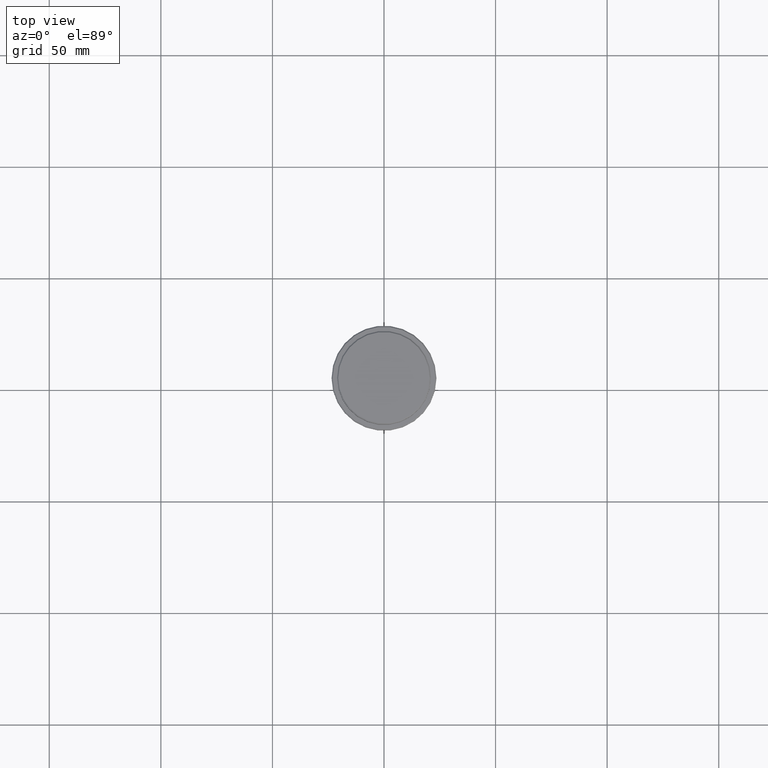
[diagram: clean part render]
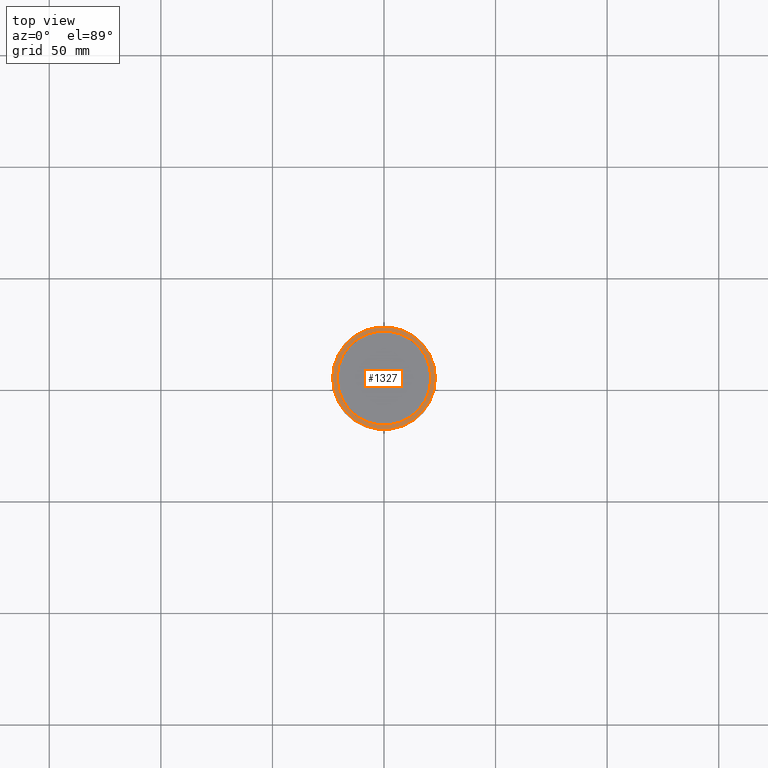
[diagram: same view with one face highlighted and labeled with its STEP entity id]
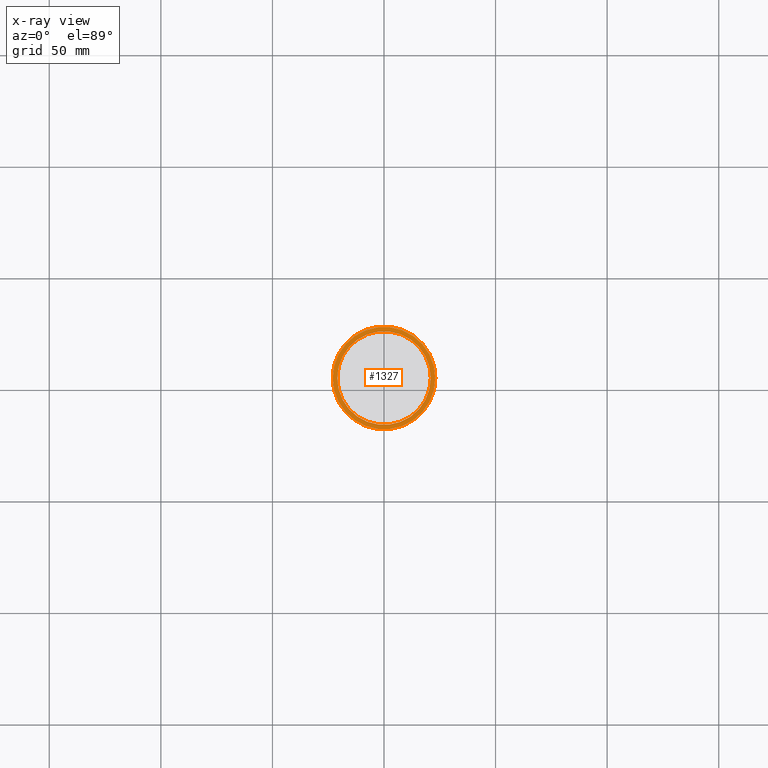
[diagram: x-ray of the same camera — body ghosted, the highlighted face saturated]
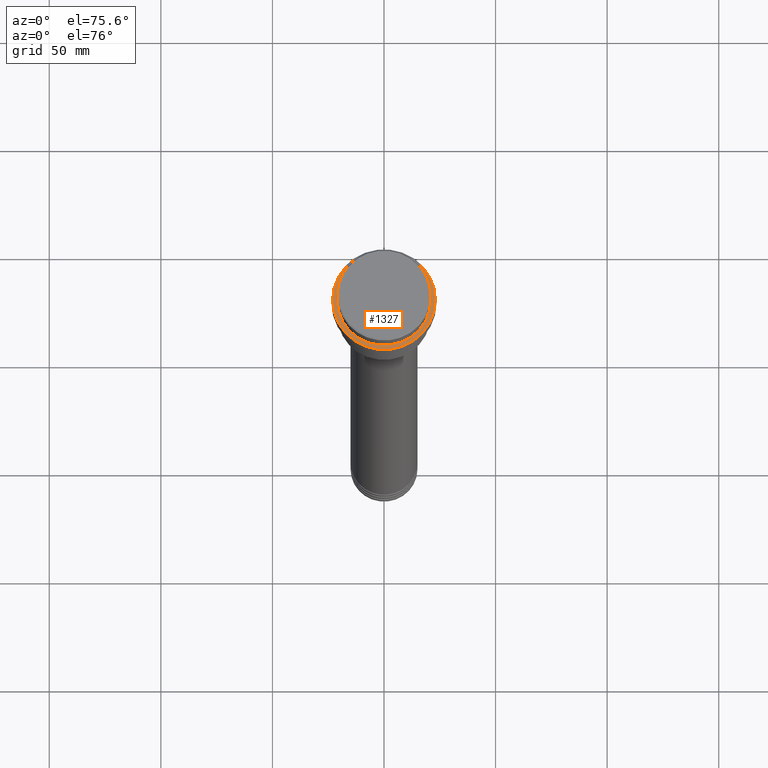
[diagram: same view with one face highlighted and labeled with its STEP entity id]
A machine part, top view. The second image highlights one B-rep face of the part: STEP entity #1327.
The next image is the same camera in x-ray: the body ghosted, the highlighted face saturated — about 0% of this face is hidden behind the body in this view.
A second angle (auxiliary view) of the same face is appended — the face is thin or edge-on in the first view.
In plain terms, the highlighted planar face has unit normal (0, -0, 1).
Its self-contained STEP definition (entity closure, byte-faithful):
#19 = DIRECTION ( 'NONE',  ( -0.000000000000000000, -0.000000000000000000, 1.000000000000000000 ) ) ;
#40 = EDGE_CURVE ( 'NONE', #364, #239, #1039, .T. ) ;
#63 = CARTESIAN_POINT ( 'NONE',  ( 0.000000000000000000, 0.000000000000000000, -9.000000000000000000 ) ) ;
#94 = PLANE ( 'NONE',  #312 ) ;
#98 = CARTESIAN_POINT ( 'NONE',  ( -22.99999999999996803, 0.000000000000000000, -9.000000000000000000 ) ) ;
#153 = EDGE_CURVE ( 'NONE', #1148, #1307, #856, .T. ) ;
#156 = DIRECTION ( 'NONE',  ( 0.000000000000000000, 0.000000000000000000, -1.000000000000000000 ) ) ;
#239 = VERTEX_POINT ( 'NONE', #946 ) ;
#242 = CARTESIAN_POINT ( 'NONE',  ( 0.000000000000000000, 0.000000000000000000, -9.000000000000000000 ) ) ;
#312 = AXIS2_PLACEMENT_3D ( 'NONE', #326, #850, #1410 ) ;
#326 = CARTESIAN_POINT ( 'NONE',  ( 0.000000000000000000, 20.49999999999999645, -9.000000000000000000 ) ) ;
#364 = VERTEX_POINT ( 'NONE', #98 ) ;
#403 = EDGE_CURVE ( 'NONE', #1307, #1148, #595, .T. ) ;
#437 = CIRCLE ( 'NONE', #1220, 22.99999999999996803 ) ;
#480 = ORIENTED_EDGE ( 'NONE', *, *, #153, .T. ) ;
#544 = DIRECTION ( 'NONE',  ( -0.000000000000000000, -0.000000000000000000, 1.000000000000000000 ) ) ;
#553 = AXIS2_PLACEMENT_3D ( 'NONE', #692, #156, #811 ) ;
#595 = CIRCLE ( 'NONE', #553, 20.99999999999999289 ) ;
#602 = DIRECTION ( 'NONE',  ( 0.000000000000000000, 0.000000000000000000, -1.000000000000000000 ) ) ;
#613 = ORIENTED_EDGE ( 'NONE', *, *, #403, .T. ) ;
#625 = FACE_BOUND ( 'NONE', #1304, .T. ) ;
#635 = AXIS2_PLACEMENT_3D ( 'NONE', #63, #602, #839 ) ;
#692 = CARTESIAN_POINT ( 'NONE',  ( 0.000000000000000000, 0.000000000000000000, -9.000000000000000000 ) ) ;
#762 = EDGE_LOOP ( 'NONE', ( #1010, #1138 ) ) ;
#811 = DIRECTION ( 'NONE',  ( 1.000000000000000000, 0.000000000000000000, 0.000000000000000000 ) ) ;
#839 = DIRECTION ( 'NONE',  ( 1.000000000000000000, 0.000000000000000000, 0.000000000000000000 ) ) ;
#850 = DIRECTION ( 'NONE',  ( 0.000000000000000000, -0.000000000000000000, 1.000000000000000000 ) ) ;
#856 = CIRCLE ( 'NONE', #635, 20.99999999999999289 ) ;
#942 = CARTESIAN_POINT ( 'NONE',  ( -20.99999999999999289, 2.571758278209440872E-15, -9.000000000000000000 ) ) ;
#946 = CARTESIAN_POINT ( 'NONE',  ( 22.99999999999996803, 2.847303808017594561E-15, -9.000000000000000000 ) ) ;
#1005 = CARTESIAN_POINT ( 'NONE',  ( 0.000000000000000000, 0.000000000000000000, -9.000000000000000000 ) ) ;
#1009 = DIRECTION ( 'NONE',  ( 1.000000000000000000, 0.000000000000000000, 0.000000000000000000 ) ) ;
#1010 = ORIENTED_EDGE ( 'NONE', *, *, #40, .T. ) ;
#1039 = CIRCLE ( 'NONE', #1175, 22.99999999999996803 ) ;
#1091 = EDGE_CURVE ( 'NONE', #239, #364, #437, .T. ) ;
#1138 = ORIENTED_EDGE ( 'NONE', *, *, #1091, .T. ) ;
#1148 = VERTEX_POINT ( 'NONE', #942 ) ;
#1175 = AXIS2_PLACEMENT_3D ( 'NONE', #242, #544, #1241 ) ;
#1220 = AXIS2_PLACEMENT_3D ( 'NONE', #1005, #19, #1009 ) ;
#1241 = DIRECTION ( 'NONE',  ( 1.000000000000000000, 0.000000000000000000, 0.000000000000000000 ) ) ;
#1280 = FACE_OUTER_BOUND ( 'NONE', #762, .T. ) ;
#1302 = CARTESIAN_POINT ( 'NONE',  ( 20.99999999999999289, 0.000000000000000000, -9.000000000000000000 ) ) ;
#1304 = EDGE_LOOP ( 'NONE', ( #613, #480 ) ) ;
#1307 = VERTEX_POINT ( 'NONE', #1302 ) ;
#1327 = ADVANCED_FACE ( 'NONE', ( #1280, #625 ), #94, .T. ) ;
#1410 = DIRECTION ( 'NONE',  ( 1.000000000000000000, 0.000000000000000000, 0.000000000000000000 ) ) ;